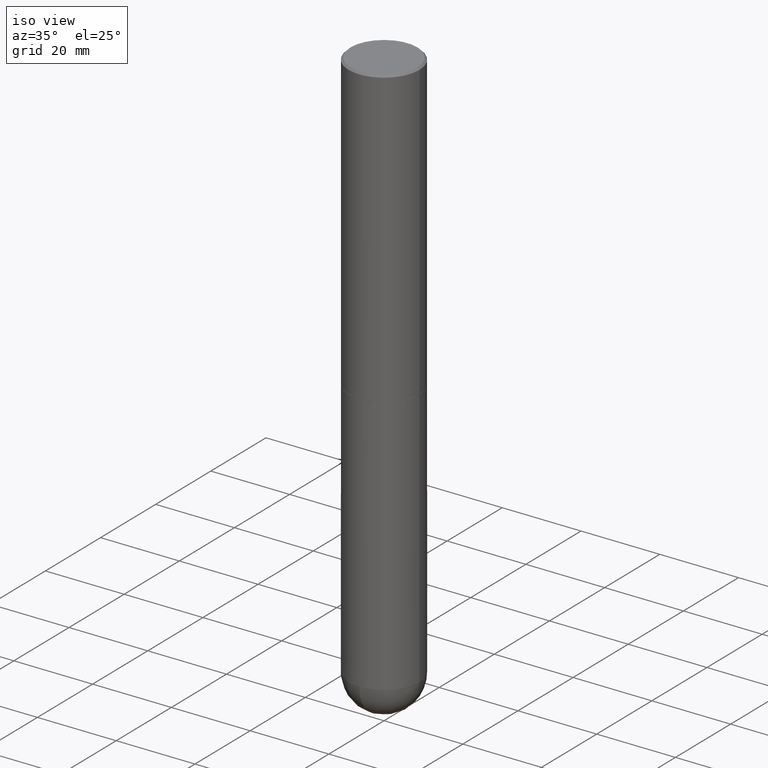
[diagram: clean part render]
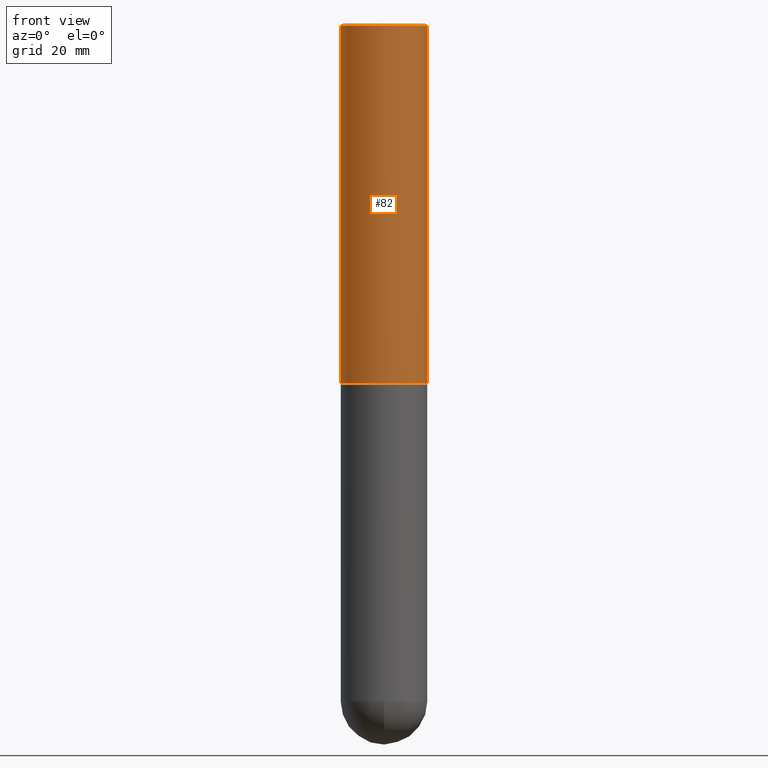
[diagram: tour spotlight — one face highlighted and labeled with its STEP entity id]
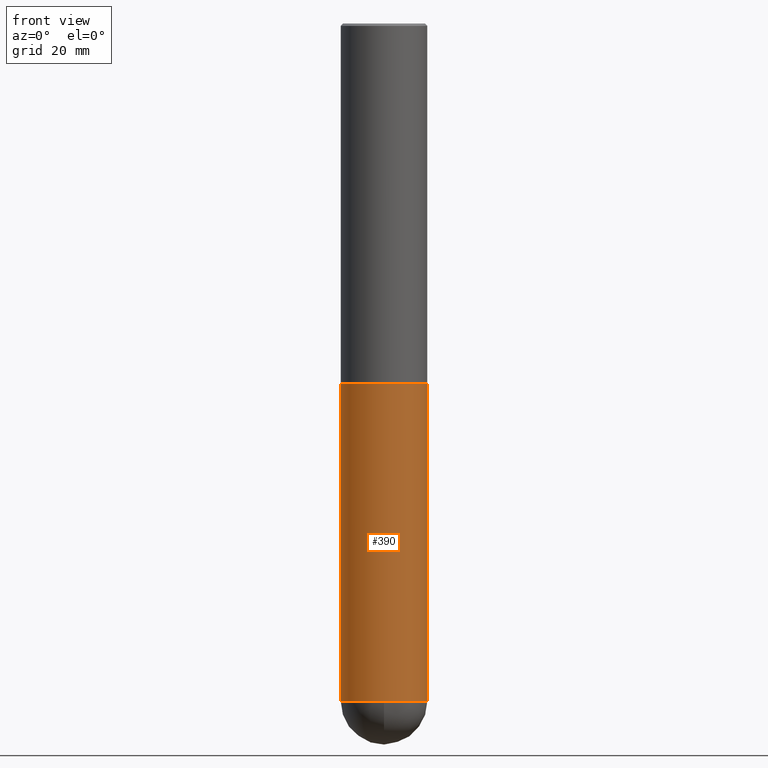
[diagram: tour spotlight — one face highlighted and labeled with its STEP entity id]
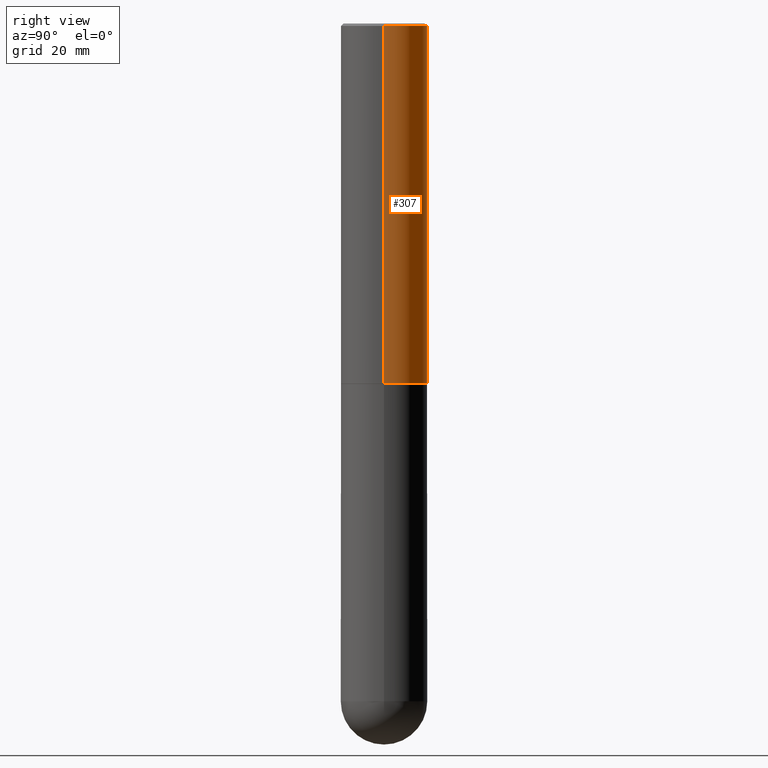
[diagram: tour spotlight — one face highlighted and labeled with its STEP entity id]
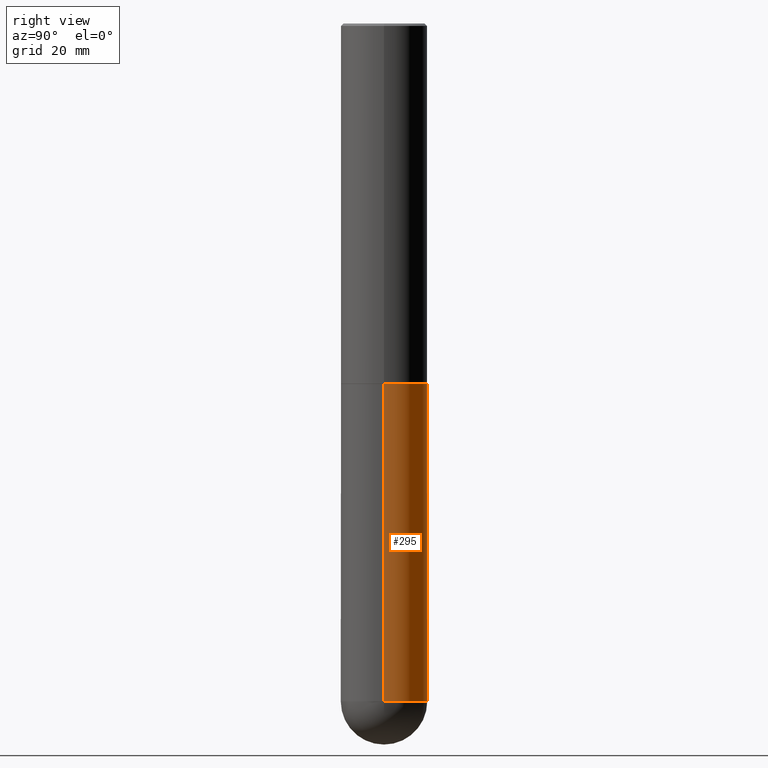
[diagram: tour spotlight — one face highlighted and labeled with its STEP entity id]
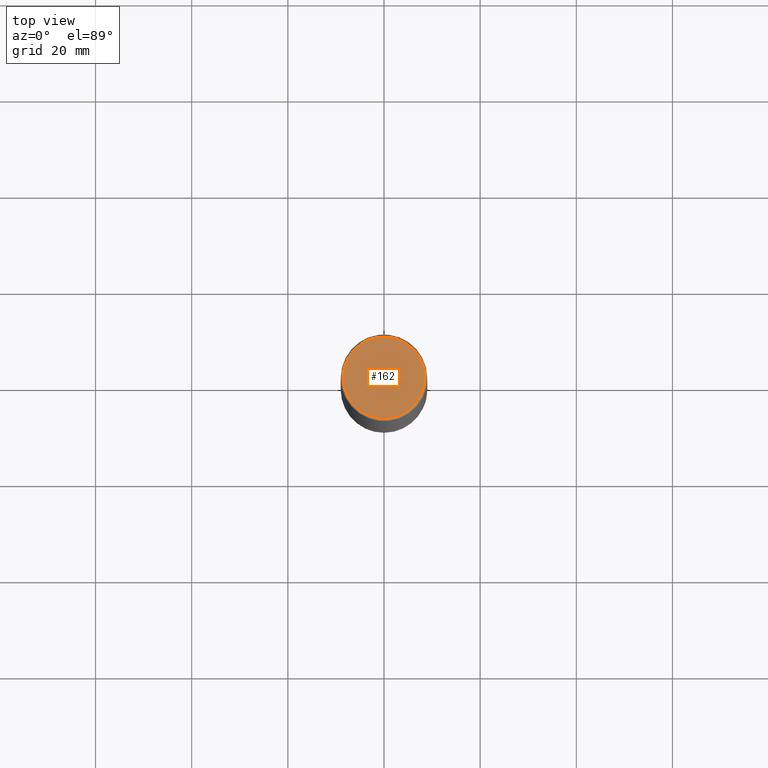
[diagram: tour spotlight — one face highlighted and labeled with its STEP entity id]
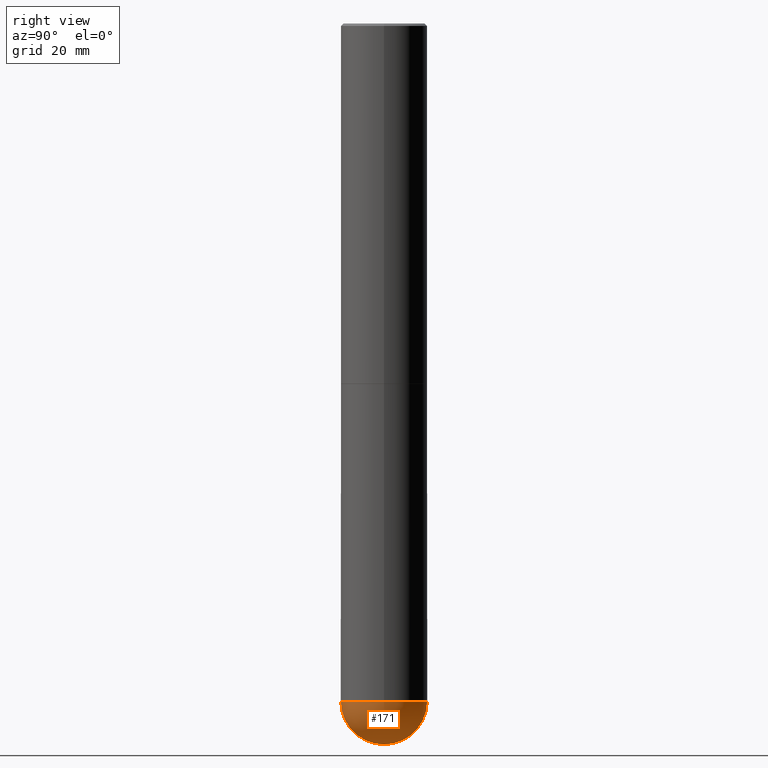
[diagram: tour spotlight — one face highlighted and labeled with its STEP entity id]
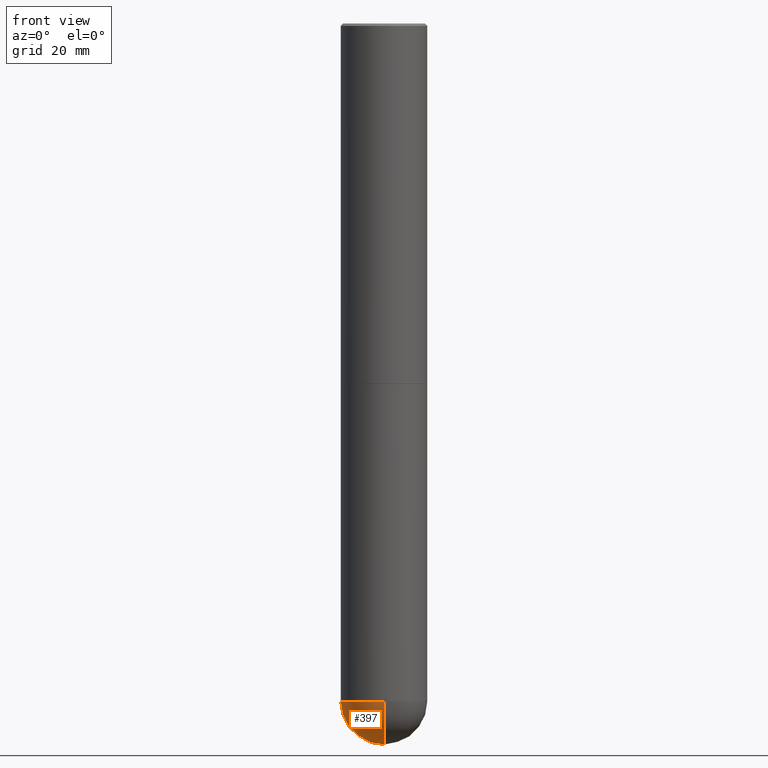
[diagram: tour spotlight — one face highlighted and labeled with its STEP entity id]
A machine part: a face-by-face anatomy tour. The part has 13 B-rep faces; the first image is the clean iso view, then the 7 largest visible faces are spotlighted one at a time (largest first), each with its STEP entity span.

Face 1 — front view, entity #82. In plain terms, the highlighted cylindrical surface (partial cylindrical patch) has radius 9.0005 mm, axis along (-0, 0, 1).
Definition (entity closure, byte-faithful):
#4 = LINE ( 'NONE', #139, #360 ) ;
#22 = ORIENTED_EDGE ( 'NONE', *, *, #83, .T. ) ;
#39 = DIRECTION ( 'NONE',  ( -2.445468806185136597E-29, 3.491481338843145583E-15, 1.000000000000000000 ) ) ;
#41 = CARTESIAN_POINT ( 'NONE',  ( -0.3543499999999999983, 2.404583198061265396E-15, -0.02000000000000008021 ) ) ;
#42 = VERTEX_POINT ( 'NONE', #93 ) ;
#61 = VERTEX_POINT ( 'NONE', #320 ) ;
#62 = VERTEX_POINT ( 'NONE', #128 ) ;
#71 = LINE ( 'NONE', #351, #88 ) ;
#74 = CARTESIAN_POINT ( 'NONE',  ( 4.890937612370293302E-31, -6.982962677686318726E-17, -0.02000000000000008021 ) ) ;
#82 = ADVANCED_FACE ( 'NONE', ( #237 ), #270, .T. ) ;
#83 = EDGE_CURVE ( 'NONE', #62, #42, #4, .T. ) ;
#88 = VECTOR ( 'NONE', #298, 39.37007874015748143 ) ;
#91 = DIRECTION ( 'NONE',  ( -2.445468806185136597E-29, 3.491481338843145583E-15, 1.000000000000000000 ) ) ;
#93 = CARTESIAN_POINT ( 'NONE',  ( 0.3543499999999999983, -2.500847092287205690E-15, -0.02000000000000008021 ) ) ;
#106 = ORIENTED_EDGE ( 'NONE', *, *, #215, .T. ) ;
#112 = EDGE_CURVE ( 'NONE', #339, #42, #361, .T. ) ;
#128 = CARTESIAN_POINT ( 'NONE',  ( 0.3543500000000004424, -1.278021829270144662E-14, -2.951700000000000212 ) ) ;
#139 = CARTESIAN_POINT ( 'NONE',  ( 0.3543500000000002204, -2.474412824838130272E-15, 1.727873240503290870E-29 ) ) ;
#173 = CIRCLE ( 'NONE', #231, 0.3543500000000004424 ) ;
#215 = EDGE_CURVE ( 'NONE', #61, #62, #173, .T. ) ;
#221 = AXIS2_PLACEMENT_3D ( 'NONE', #74, #91, #278 ) ;
#225 = ORIENTED_EDGE ( 'NONE', *, *, #112, .F. ) ;
#231 = AXIS2_PLACEMENT_3D ( 'NONE', #294, #395, #356 ) ;
#234 = ORIENTED_EDGE ( 'NONE', *, *, #272, .F. ) ;
#237 = FACE_OUTER_BOUND ( 'NONE', #252, .T. ) ;
#252 = EDGE_LOOP ( 'NONE', ( #234, #106, #22, #225 ) ) ;
#267 = DIRECTION ( 'NONE',  ( 1.000000000000000000, -6.982962677686266711E-15, 4.876176775795935793E-29 ) ) ;
#270 = CYLINDRICAL_SURFACE ( 'NONE', #399, 0.3543500000000002204 ) ;
#272 = EDGE_CURVE ( 'NONE', #61, #339, #71, .T. ) ;
#278 = DIRECTION ( 'NONE',  ( 1.000000000000000000, -6.982962677686266711E-15, 0.000000000000000000 ) ) ;
#294 = CARTESIAN_POINT ( 'NONE',  ( 7.218290275216666916E-29, -1.030580546786331359E-14, -2.951700000000000212 ) ) ;
#298 = DIRECTION ( 'NONE',  ( -2.445468806185136877E-29, 3.491481338843145188E-15, 1.000000000000000000 ) ) ;
#320 = CARTESIAN_POINT ( 'NONE',  ( -0.3543500000000004424, -2.670009363154166740E-15, -2.951700000000000212 ) ) ;
#339 = VERTEX_POINT ( 'NONE', #41 ) ;
#351 = CARTESIAN_POINT ( 'NONE',  ( -0.3543500000000002204, 2.517808184165916574E-15, -1.743024649231827187E-29 ) ) ;
#355 = DIRECTION ( 'NONE',  ( -2.445468806185136877E-29, 3.491481338843145188E-15, 1.000000000000000000 ) ) ;
#356 = DIRECTION ( 'NONE',  ( 1.000000000000000000, -6.982962677686268288E-15, 0.000000000000000000 ) ) ;
#360 = VECTOR ( 'NONE', #355, 39.37007874015748143 ) ;
#361 = CIRCLE ( 'NONE', #221, 0.3543499999999999983 ) ;
#395 = DIRECTION ( 'NONE',  ( -2.445468806185136597E-29, 3.491481338843145583E-15, 1.000000000000000000 ) ) ;
#398 = CARTESIAN_POINT ( 'NONE',  ( 0.000000000000000000, 0.000000000000000000, 0.000000000000000000 ) ) ;
#399 = AXIS2_PLACEMENT_3D ( 'NONE', #398, #39, #267 ) ;

Face 2 — front view, entity #390. In plain terms, the highlighted cylindrical surface (partial cylindrical patch) has radius 9.0005 mm, axis along (-0, 0, 1).
Definition (entity closure, byte-faithful):
#8 = DIRECTION ( 'NONE',  ( -2.445468806185136597E-29, 3.491481338843145583E-15, 1.000000000000000000 ) ) ;
#14 = LINE ( 'NONE', #73, #309 ) ;
#20 = DIRECTION ( 'NONE',  ( -2.445468806185136597E-29, 3.491481338843145583E-15, 1.000000000000000000 ) ) ;
#35 = CIRCLE ( 'NONE', #75, 0.3543499999999999428 ) ;
#40 = DIRECTION ( 'NONE',  ( -2.445468806185136597E-29, 3.491481338843145583E-15, 1.000000000000000000 ) ) ;
#70 = EDGE_CURVE ( 'NONE', #280, #219, #35, .T. ) ;
#72 = CARTESIAN_POINT ( 'NONE',  ( -0.3543499999999999428, -1.232770860749472642E-14, -5.551149999999999807 ) ) ;
#73 = CARTESIAN_POINT ( 'NONE',  ( 0.3543499999999999983, -2.474412824838128694E-15, 1.727873240503289749E-29 ) ) ;
#75 = AXIS2_PLACEMENT_3D ( 'NONE', #302, #20, #392 ) ;
#94 = DIRECTION ( 'NONE',  ( -2.445468806185136877E-29, 3.491481338843145188E-15, 1.000000000000000000 ) ) ;
#111 = CARTESIAN_POINT ( 'NONE',  ( -2.517808184165781285E-15, -0.3543500000000196493, -5.551149999999998919 ) ) ;
#120 = AXIS2_PLACEMENT_3D ( 'NONE', #261, #387, #144 ) ;
#130 = VERTEX_POINT ( 'NONE', #217 ) ;
#132 = DIRECTION ( 'NONE',  ( -2.445468806185136877E-29, 3.491481338843145188E-15, 1.000000000000000000 ) ) ;
#133 = VECTOR ( 'NONE', #94, 39.37007874015748143 ) ;
#141 = CIRCLE ( 'NONE', #304, 0.3543499999999999983 ) ;
#144 = DIRECTION ( 'NONE',  ( 1.000000000000000000, -6.982962677686261189E-15, 0.000000000000000000 ) ) ;
#155 = DIRECTION ( 'NONE',  ( 1.000000000000000000, -6.982962677686266711E-15, 4.876176775795935793E-29 ) ) ;
#159 = CARTESIAN_POINT ( 'NONE',  ( -0.3543499999999999983, -1.232770860749472484E-14, -2.952700000000000102 ) ) ;
#174 = ORIENTED_EDGE ( 'NONE', *, *, #211, .T. ) ;
#184 = CARTESIAN_POINT ( 'NONE',  ( 7.220735744022852519E-29, -1.030929694920215502E-14, -2.952700000000000102 ) ) ;
#195 = ORIENTED_EDGE ( 'NONE', *, *, #70, .T. ) ;
#201 = ORIENTED_EDGE ( 'NONE', *, *, #291, .F. ) ;
#211 = EDGE_CURVE ( 'NONE', #219, #130, #303, .T. ) ;
#217 = CARTESIAN_POINT ( 'NONE',  ( 0.3543499999999999428, -1.731992961649876932E-14, -5.551149999999999807 ) ) ;
#218 = EDGE_LOOP ( 'NONE', ( #396, #195, #174, #350, #201 ) ) ;
#219 = VERTEX_POINT ( 'NONE', #111 ) ;
#232 = AXIS2_PLACEMENT_3D ( 'NONE', #366, #40, #155 ) ;
#261 = CARTESIAN_POINT ( 'NONE',  ( 1.357516416345461774E-28, -1.938173663411912545E-14, -5.551149999999999807 ) ) ;
#273 = EDGE_CURVE ( 'NONE', #130, #276, #14, .T. ) ;
#276 = VERTEX_POINT ( 'NONE', #391 ) ;
#280 = VERTEX_POINT ( 'NONE', #72 ) ;
#291 = EDGE_CURVE ( 'NONE', #384, #276, #141, .T. ) ;
#302 = CARTESIAN_POINT ( 'NONE',  ( 1.357516416345461774E-28, -1.938173663411912545E-14, -5.551149999999999807 ) ) ;
#303 = CIRCLE ( 'NONE', #120, 0.3543499999999999428 ) ;
#304 = AXIS2_PLACEMENT_3D ( 'NONE', #184, #8, #315 ) ;
#309 = VECTOR ( 'NONE', #132, 39.37007874015748143 ) ;
#315 = DIRECTION ( 'NONE',  ( 1.000000000000000000, -6.982962677686265922E-15, 0.000000000000000000 ) ) ;
#319 = CYLINDRICAL_SURFACE ( 'NONE', #232, 0.3543499999999999983 ) ;
#336 = EDGE_CURVE ( 'NONE', #280, #384, #343, .T. ) ;
#343 = LINE ( 'NONE', #368, #133 ) ;
#350 = ORIENTED_EDGE ( 'NONE', *, *, #273, .T. ) ;
#365 = FACE_OUTER_BOUND ( 'NONE', #218, .T. ) ;
#366 = CARTESIAN_POINT ( 'NONE',  ( 0.000000000000000000, 0.000000000000000000, 0.000000000000000000 ) ) ;
#368 = CARTESIAN_POINT ( 'NONE',  ( -0.3543499999999999983, 2.517808184165914997E-15, -1.743024649231826066E-29 ) ) ;
#384 = VERTEX_POINT ( 'NONE', #159 ) ;
#387 = DIRECTION ( 'NONE',  ( -2.445468806185136597E-29, 3.491481338843145583E-15, 1.000000000000000000 ) ) ;
#390 = ADVANCED_FACE ( 'NONE', ( #365 ), #319, .T. ) ;
#391 = CARTESIAN_POINT ( 'NONE',  ( 0.3543499999999999983, -1.278370977404028332E-14, -2.952700000000000102 ) ) ;
#392 = DIRECTION ( 'NONE',  ( 1.000000000000000000, -6.982962677686261189E-15, 0.000000000000000000 ) ) ;
#396 = ORIENTED_EDGE ( 'NONE', *, *, #336, .F. ) ;

Face 3 — right view, entity #307. In plain terms, the highlighted cylindrical surface (partial cylindrical patch) has radius 9.0005 mm, axis along (-0, 0, 1).
Definition (entity closure, byte-faithful):
#3 = DIRECTION ( 'NONE',  ( -2.445468806185136597E-29, 3.491481338843145583E-15, 1.000000000000000000 ) ) ;
#4 = LINE ( 'NONE', #139, #360 ) ;
#25 = AXIS2_PLACEMENT_3D ( 'NONE', #266, #3, #240 ) ;
#41 = CARTESIAN_POINT ( 'NONE',  ( -0.3543499999999999983, 2.404583198061265396E-15, -0.02000000000000008021 ) ) ;
#42 = VERTEX_POINT ( 'NONE', #93 ) ;
#49 = ORIENTED_EDGE ( 'NONE', *, *, #83, .F. ) ;
#61 = VERTEX_POINT ( 'NONE', #320 ) ;
#62 = VERTEX_POINT ( 'NONE', #128 ) ;
#65 = ORIENTED_EDGE ( 'NONE', *, *, #272, .T. ) ;
#68 = CIRCLE ( 'NONE', #25, 0.3543499999999999983 ) ;
#69 = EDGE_CURVE ( 'NONE', #62, #61, #150, .T. ) ;
#71 = LINE ( 'NONE', #351, #88 ) ;
#78 = ORIENTED_EDGE ( 'NONE', *, *, #69, .T. ) ;
#83 = EDGE_CURVE ( 'NONE', #62, #42, #4, .T. ) ;
#88 = VECTOR ( 'NONE', #298, 39.37007874015748143 ) ;
#93 = CARTESIAN_POINT ( 'NONE',  ( 0.3543499999999999983, -2.500847092287205690E-15, -0.02000000000000008021 ) ) ;
#128 = CARTESIAN_POINT ( 'NONE',  ( 0.3543500000000004424, -1.278021829270144662E-14, -2.951700000000000212 ) ) ;
#135 = DIRECTION ( 'NONE',  ( -2.445468806185136597E-29, 3.491481338843145583E-15, 1.000000000000000000 ) ) ;
#139 = CARTESIAN_POINT ( 'NONE',  ( 0.3543500000000002204, -2.474412824838130272E-15, 1.727873240503290870E-29 ) ) ;
#150 = CIRCLE ( 'NONE', #213, 0.3543500000000004424 ) ;
#164 = DIRECTION ( 'NONE',  ( -2.445468806185136597E-29, 3.491481338843145583E-15, 1.000000000000000000 ) ) ;
#187 = EDGE_CURVE ( 'NONE', #42, #339, #68, .T. ) ;
#189 = AXIS2_PLACEMENT_3D ( 'NONE', #226, #135, #376 ) ;
#213 = AXIS2_PLACEMENT_3D ( 'NONE', #411, #164, #243 ) ;
#226 = CARTESIAN_POINT ( 'NONE',  ( 0.000000000000000000, 0.000000000000000000, 0.000000000000000000 ) ) ;
#238 = FACE_OUTER_BOUND ( 'NONE', #257, .T. ) ;
#240 = DIRECTION ( 'NONE',  ( 1.000000000000000000, -6.982962677686266711E-15, 0.000000000000000000 ) ) ;
#243 = DIRECTION ( 'NONE',  ( 1.000000000000000000, -6.982962677686268288E-15, 0.000000000000000000 ) ) ;
#245 = ORIENTED_EDGE ( 'NONE', *, *, #187, .F. ) ;
#257 = EDGE_LOOP ( 'NONE', ( #78, #65, #245, #49 ) ) ;
#266 = CARTESIAN_POINT ( 'NONE',  ( 4.890937612370293302E-31, -6.982962677686318726E-17, -0.02000000000000008021 ) ) ;
#272 = EDGE_CURVE ( 'NONE', #61, #339, #71, .T. ) ;
#298 = DIRECTION ( 'NONE',  ( -2.445468806185136877E-29, 3.491481338843145188E-15, 1.000000000000000000 ) ) ;
#307 = ADVANCED_FACE ( 'NONE', ( #238 ), #310, .T. ) ;
#310 = CYLINDRICAL_SURFACE ( 'NONE', #189, 0.3543500000000002204 ) ;
#320 = CARTESIAN_POINT ( 'NONE',  ( -0.3543500000000004424, -2.670009363154166740E-15, -2.951700000000000212 ) ) ;
#339 = VERTEX_POINT ( 'NONE', #41 ) ;
#351 = CARTESIAN_POINT ( 'NONE',  ( -0.3543500000000002204, 2.517808184165916574E-15, -1.743024649231827187E-29 ) ) ;
#355 = DIRECTION ( 'NONE',  ( -2.445468806185136877E-29, 3.491481338843145188E-15, 1.000000000000000000 ) ) ;
#360 = VECTOR ( 'NONE', #355, 39.37007874015748143 ) ;
#376 = DIRECTION ( 'NONE',  ( 1.000000000000000000, -6.982962677686266711E-15, 4.876176775795935793E-29 ) ) ;
#411 = CARTESIAN_POINT ( 'NONE',  ( 7.218290275216666916E-29, -1.030580546786331359E-14, -2.951700000000000212 ) ) ;

Face 4 — right view, entity #295. In plain terms, the highlighted cylindrical surface (partial cylindrical patch) has radius 9.0005 mm, axis along (-0, 0, 1).
Definition (entity closure, byte-faithful):
#9 = DIRECTION ( 'NONE',  ( -2.445468806185136597E-29, 3.491481338843145583E-15, 1.000000000000000000 ) ) ;
#12 = AXIS2_PLACEMENT_3D ( 'NONE', #386, #255, #37 ) ;
#14 = LINE ( 'NONE', #73, #309 ) ;
#18 = ORIENTED_EDGE ( 'NONE', *, *, #241, .T. ) ;
#24 = EDGE_CURVE ( 'NONE', #276, #384, #407, .T. ) ;
#31 = EDGE_LOOP ( 'NONE', ( #18, #308, #124, #380, #412 ) ) ;
#36 = CIRCLE ( 'NONE', #271, 0.3543499999999999428 ) ;
#37 = DIRECTION ( 'NONE',  ( 1.000000000000000000, -6.982962677686266711E-15, 4.876176775795935793E-29 ) ) ;
#45 = CARTESIAN_POINT ( 'NONE',  ( 1.357516416345461774E-28, -1.938173663411912545E-14, -5.551149999999999807 ) ) ;
#55 = VERTEX_POINT ( 'NONE', #374 ) ;
#72 = CARTESIAN_POINT ( 'NONE',  ( -0.3543499999999999428, -1.232770860749472642E-14, -5.551149999999999807 ) ) ;
#73 = CARTESIAN_POINT ( 'NONE',  ( 0.3543499999999999983, -2.474412824838128694E-15, 1.727873240503289749E-29 ) ) ;
#76 = CARTESIAN_POINT ( 'NONE',  ( 1.357516416345461774E-28, -1.938173663411912545E-14, -5.551149999999999807 ) ) ;
#94 = DIRECTION ( 'NONE',  ( -2.445468806185136877E-29, 3.491481338843145188E-15, 1.000000000000000000 ) ) ;
#96 = AXIS2_PLACEMENT_3D ( 'NONE', #160, #102, #230 ) ;
#102 = DIRECTION ( 'NONE',  ( -2.445468806185136597E-29, 3.491481338843145583E-15, 1.000000000000000000 ) ) ;
#103 = DIRECTION ( 'NONE',  ( -2.445468806185136597E-29, 3.491481338843145583E-15, 1.000000000000000000 ) ) ;
#107 = DIRECTION ( 'NONE',  ( 1.000000000000000000, -6.982962677686261189E-15, 0.000000000000000000 ) ) ;
#124 = ORIENTED_EDGE ( 'NONE', *, *, #24, .F. ) ;
#130 = VERTEX_POINT ( 'NONE', #217 ) ;
#132 = DIRECTION ( 'NONE',  ( -2.445468806185136877E-29, 3.491481338843145188E-15, 1.000000000000000000 ) ) ;
#133 = VECTOR ( 'NONE', #94, 39.37007874015748143 ) ;
#159 = CARTESIAN_POINT ( 'NONE',  ( -0.3543499999999999983, -1.232770860749472484E-14, -2.952700000000000102 ) ) ;
#160 = CARTESIAN_POINT ( 'NONE',  ( 7.220735744022852519E-29, -1.030929694920215502E-14, -2.952700000000000102 ) ) ;
#217 = CARTESIAN_POINT ( 'NONE',  ( 0.3543499999999999428, -1.731992961649876932E-14, -5.551149999999999807 ) ) ;
#230 = DIRECTION ( 'NONE',  ( 1.000000000000000000, -6.982962677686265922E-15, 0.000000000000000000 ) ) ;
#233 = DIRECTION ( 'NONE',  ( 1.000000000000000000, -6.982962677686261189E-15, 0.000000000000000000 ) ) ;
#241 = EDGE_CURVE ( 'NONE', #55, #280, #36, .T. ) ;
#255 = DIRECTION ( 'NONE',  ( -2.445468806185136597E-29, 3.491481338843145583E-15, 1.000000000000000000 ) ) ;
#263 = FACE_OUTER_BOUND ( 'NONE', #31, .T. ) ;
#265 = CYLINDRICAL_SURFACE ( 'NONE', #12, 0.3543499999999999983 ) ;
#268 = EDGE_CURVE ( 'NONE', #130, #55, #408, .T. ) ;
#271 = AXIS2_PLACEMENT_3D ( 'NONE', #76, #9, #107 ) ;
#273 = EDGE_CURVE ( 'NONE', #130, #276, #14, .T. ) ;
#276 = VERTEX_POINT ( 'NONE', #391 ) ;
#280 = VERTEX_POINT ( 'NONE', #72 ) ;
#295 = ADVANCED_FACE ( 'NONE', ( #263 ), #265, .T. ) ;
#308 = ORIENTED_EDGE ( 'NONE', *, *, #336, .T. ) ;
#309 = VECTOR ( 'NONE', #132, 39.37007874015748143 ) ;
#336 = EDGE_CURVE ( 'NONE', #280, #384, #343, .T. ) ;
#343 = LINE ( 'NONE', #368, #133 ) ;
#368 = CARTESIAN_POINT ( 'NONE',  ( -0.3543499999999999983, 2.517808184165914997E-15, -1.743024649231826066E-29 ) ) ;
#374 = CARTESIAN_POINT ( 'NONE',  ( 2.474412824838263195E-15, 0.3543499999999804584, -5.551150000000000695 ) ) ;
#380 = ORIENTED_EDGE ( 'NONE', *, *, #273, .F. ) ;
#384 = VERTEX_POINT ( 'NONE', #159 ) ;
#386 = CARTESIAN_POINT ( 'NONE',  ( 0.000000000000000000, 0.000000000000000000, 0.000000000000000000 ) ) ;
#391 = CARTESIAN_POINT ( 'NONE',  ( 0.3543499999999999983, -1.278370977404028332E-14, -2.952700000000000102 ) ) ;
#401 = AXIS2_PLACEMENT_3D ( 'NONE', #45, #103, #233 ) ;
#407 = CIRCLE ( 'NONE', #96, 0.3543499999999999983 ) ;
#408 = CIRCLE ( 'NONE', #401, 0.3543499999999999428 ) ;
#412 = ORIENTED_EDGE ( 'NONE', *, *, #268, .T. ) ;

Face 5 — top view, entity #162. In plain terms, the highlighted planar face has unit normal (0, -0, -1).
Definition (entity closure, byte-faithful):
#13 = CARTESIAN_POINT ( 'NONE',  ( -0.3343499999999999250, 2.369668384672834141E-15, 2.561107494058601869E-17 ) ) ;
#23 = EDGE_LOOP ( 'NONE', ( #239, #358 ) ) ;
#50 = EDGE_CURVE ( 'NONE', #292, #328, #52, .T. ) ;
#52 = CIRCLE ( 'NONE', #244, 0.3343499999999999250 ) ;
#123 = FACE_OUTER_BOUND ( 'NONE', #23, .T. ) ;
#154 = CIRCLE ( 'NONE', #206, 0.3343499999999999250 ) ;
#156 = DIRECTION ( 'NONE',  ( 1.000000000000000000, -6.982962677686267499E-15, 4.875777752381879149E-29 ) ) ;
#162 = ADVANCED_FACE ( 'NONE', ( #123 ), #341, .F. ) ;
#182 = CARTESIAN_POINT ( 'NONE',  ( 2.334753571284402492E-15, 0.3343499999999999250, -1.154571248171904305E-15 ) ) ;
#193 = DIRECTION ( 'NONE',  ( 1.000000000000000000, -6.982962677686267499E-15, 4.875777752381879149E-29 ) ) ;
#200 = CARTESIAN_POINT ( 'NONE',  ( 0.3343499999999999250, -2.397327298921058709E-15, 2.561107494061901218E-17 ) ) ;
#206 = AXIS2_PLACEMENT_3D ( 'NONE', #325, #381, #193 ) ;
#236 = EDGE_CURVE ( 'NONE', #328, #292, #154, .T. ) ;
#239 = ORIENTED_EDGE ( 'NONE', *, *, #50, .T. ) ;
#244 = AXIS2_PLACEMENT_3D ( 'NONE', #258, #284, #156 ) ;
#258 = CARTESIAN_POINT ( 'NONE',  ( -6.263108486011318528E-46, 8.942059022282683748E-32, 2.561107494060246767E-17 ) ) ;
#284 = DIRECTION ( 'NONE',  ( -2.445468806185136597E-29, 3.491481338843145583E-15, 1.000000000000000000 ) ) ;
#292 = VERTEX_POINT ( 'NONE', #13 ) ;
#311 = DIRECTION ( 'NONE',  ( 2.438088387897960049E-29, -3.491481338843145188E-15, -1.000000000000000000 ) ) ;
#325 = CARTESIAN_POINT ( 'NONE',  ( -6.263108486011318528E-46, 8.942059022282683748E-32, 2.561107494060246767E-17 ) ) ;
#327 = AXIS2_PLACEMENT_3D ( 'NONE', #182, #311, #373 ) ;
#328 = VERTEX_POINT ( 'NONE', #200 ) ;
#341 = PLANE ( 'NONE',  #327 ) ;
#358 = ORIENTED_EDGE ( 'NONE', *, *, #236, .T. ) ;
#373 = DIRECTION ( 'NONE',  ( -1.000000000000000000, 6.982962677686265922E-15, -4.876176775795935793E-29 ) ) ;
#381 = DIRECTION ( 'NONE',  ( -2.445468806185136597E-29, 3.491481338843145583E-15, 1.000000000000000000 ) ) ;

Face 6 — right view, entity #171. In plain terms, the highlighted spherical surface has radius 9.0005 mm.
Definition (entity closure, byte-faithful):
#32 = DIRECTION ( 'NONE',  ( -7.105427357601001070E-15, -1.000000000000000000, 0.000000000000000000 ) ) ;
#45 = CARTESIAN_POINT ( 'NONE',  ( 1.357516416345461774E-28, -1.938173663411912545E-14, -5.551149999999999807 ) ) ;
#46 = AXIS2_PLACEMENT_3D ( 'NONE', #127, #178, #32 ) ;
#55 = VERTEX_POINT ( 'NONE', #374 ) ;
#81 = EDGE_CURVE ( 'NONE', #324, #55, #114, .T. ) ;
#87 = AXIS2_PLACEMENT_3D ( 'NONE', #229, #354, #349 ) ;
#101 = SPHERICAL_SURFACE ( 'NONE', #87, 0.3543500000000002204 ) ;
#103 = DIRECTION ( 'NONE',  ( -2.445468806185136597E-29, 3.491481338843145583E-15, 1.000000000000000000 ) ) ;
#108 = DIRECTION ( 'NONE',  ( 6.982962677686265133E-15, 1.000000000000000000, 0.000000000000000000 ) ) ;
#111 = CARTESIAN_POINT ( 'NONE',  ( -2.517808184165781285E-15, -0.3543500000000196493, -5.551149999999998919 ) ) ;
#114 = CIRCLE ( 'NONE', #254, 0.3543500000000002204 ) ;
#120 = AXIS2_PLACEMENT_3D ( 'NONE', #261, #387, #144 ) ;
#127 = CARTESIAN_POINT ( 'NONE',  ( 1.324404438554073486E-28, -1.985591900225917417E-14, -5.551149999999999807 ) ) ;
#130 = VERTEX_POINT ( 'NONE', #217 ) ;
#144 = DIRECTION ( 'NONE',  ( 1.000000000000000000, -6.982962677686261189E-15, 0.000000000000000000 ) ) ;
#146 = EDGE_CURVE ( 'NONE', #324, #219, #246, .T. ) ;
#165 = ORIENTED_EDGE ( 'NONE', *, *, #81, .T. ) ;
#168 = CARTESIAN_POINT ( 'NONE',  ( 1.324404438554073486E-28, -1.985591900225917417E-14, -5.551149999999999807 ) ) ;
#171 = ADVANCED_FACE ( 'NONE', ( #377 ), #101, .T. ) ;
#178 = DIRECTION ( 'NONE',  ( -1.000000000000000000, 7.105427357601001070E-15, -4.926315508542082329E-29 ) ) ;
#204 = ORIENTED_EDGE ( 'NONE', *, *, #268, .F. ) ;
#211 = EDGE_CURVE ( 'NONE', #219, #130, #303, .T. ) ;
#217 = CARTESIAN_POINT ( 'NONE',  ( 0.3543499999999999428, -1.731992961649876932E-14, -5.551149999999999807 ) ) ;
#219 = VERTEX_POINT ( 'NONE', #111 ) ;
#229 = CARTESIAN_POINT ( 'NONE',  ( 1.324404438554073486E-28, -1.985591900225917417E-14, -5.551149999999999807 ) ) ;
#233 = DIRECTION ( 'NONE',  ( 1.000000000000000000, -6.982962677686261189E-15, 0.000000000000000000 ) ) ;
#246 = CIRCLE ( 'NONE', #46, 0.3543500000000002204 ) ;
#254 = AXIS2_PLACEMENT_3D ( 'NONE', #168, #388, #108 ) ;
#261 = CARTESIAN_POINT ( 'NONE',  ( 1.357516416345461774E-28, -1.938173663411912545E-14, -5.551149999999999807 ) ) ;
#268 = EDGE_CURVE ( 'NONE', #130, #55, #408, .T. ) ;
#303 = CIRCLE ( 'NONE', #120, 0.3543499999999999428 ) ;
#312 = ORIENTED_EDGE ( 'NONE', *, *, #146, .F. ) ;
#324 = VERTEX_POINT ( 'NONE', #326 ) ;
#326 = CARTESIAN_POINT ( 'NONE',  ( 1.412574766574097249E-28, -2.107142773501435227E-14, -5.905499999999999972 ) ) ;
#332 = ORIENTED_EDGE ( 'NONE', *, *, #211, .F. ) ;
#349 = DIRECTION ( 'NONE',  ( 6.982962677686265922E-15, 1.000000000000000000, -3.083784951222533328E-15 ) ) ;
#354 = DIRECTION ( 'NONE',  ( -1.000000000000000000, 6.982962677686265922E-15, -4.883557194083112340E-29 ) ) ;
#374 = CARTESIAN_POINT ( 'NONE',  ( 2.474412824838263195E-15, 0.3543499999999804584, -5.551150000000000695 ) ) ;
#377 = FACE_OUTER_BOUND ( 'NONE', #394, .T. ) ;
#387 = DIRECTION ( 'NONE',  ( -2.445468806185136597E-29, 3.491481338843145583E-15, 1.000000000000000000 ) ) ;
#388 = DIRECTION ( 'NONE',  ( 1.000000000000000000, -6.982962677686265922E-15, 4.883557194083112340E-29 ) ) ;
#394 = EDGE_LOOP ( 'NONE', ( #312, #165, #204, #332 ) ) ;
#401 = AXIS2_PLACEMENT_3D ( 'NONE', #45, #103, #233 ) ;
#408 = CIRCLE ( 'NONE', #401, 0.3543499999999999428 ) ;

Face 7 — front view, entity #397. In plain terms, the highlighted spherical surface has radius 9.0005 mm.
Definition (entity closure, byte-faithful):
#5 = SPHERICAL_SURFACE ( 'NONE', #59, 0.3543500000000002204 ) ;
#7 = EDGE_LOOP ( 'NONE', ( #183, #77, #286, #282 ) ) ;
#9 = DIRECTION ( 'NONE',  ( -2.445468806185136597E-29, 3.491481338843145583E-15, 1.000000000000000000 ) ) ;
#20 = DIRECTION ( 'NONE',  ( -2.445468806185136597E-29, 3.491481338843145583E-15, 1.000000000000000000 ) ) ;
#32 = DIRECTION ( 'NONE',  ( -7.105427357601001070E-15, -1.000000000000000000, 0.000000000000000000 ) ) ;
#35 = CIRCLE ( 'NONE', #75, 0.3543499999999999428 ) ;
#36 = CIRCLE ( 'NONE', #271, 0.3543499999999999428 ) ;
#46 = AXIS2_PLACEMENT_3D ( 'NONE', #127, #178, #32 ) ;
#55 = VERTEX_POINT ( 'NONE', #374 ) ;
#59 = AXIS2_PLACEMENT_3D ( 'NONE', #279, #344, #60 ) ;
#60 = DIRECTION ( 'NONE',  ( 6.982962677686265922E-15, 1.000000000000000000, -3.083784951222533328E-15 ) ) ;
#70 = EDGE_CURVE ( 'NONE', #280, #219, #35, .T. ) ;
#72 = CARTESIAN_POINT ( 'NONE',  ( -0.3543499999999999428, -1.232770860749472642E-14, -5.551149999999999807 ) ) ;
#75 = AXIS2_PLACEMENT_3D ( 'NONE', #302, #20, #392 ) ;
#76 = CARTESIAN_POINT ( 'NONE',  ( 1.357516416345461774E-28, -1.938173663411912545E-14, -5.551149999999999807 ) ) ;
#77 = ORIENTED_EDGE ( 'NONE', *, *, #146, .T. ) ;
#81 = EDGE_CURVE ( 'NONE', #324, #55, #114, .T. ) ;
#92 = FACE_OUTER_BOUND ( 'NONE', #7, .T. ) ;
#107 = DIRECTION ( 'NONE',  ( 1.000000000000000000, -6.982962677686261189E-15, 0.000000000000000000 ) ) ;
#108 = DIRECTION ( 'NONE',  ( 6.982962677686265133E-15, 1.000000000000000000, 0.000000000000000000 ) ) ;
#111 = CARTESIAN_POINT ( 'NONE',  ( -2.517808184165781285E-15, -0.3543500000000196493, -5.551149999999998919 ) ) ;
#114 = CIRCLE ( 'NONE', #254, 0.3543500000000002204 ) ;
#127 = CARTESIAN_POINT ( 'NONE',  ( 1.324404438554073486E-28, -1.985591900225917417E-14, -5.551149999999999807 ) ) ;
#146 = EDGE_CURVE ( 'NONE', #324, #219, #246, .T. ) ;
#168 = CARTESIAN_POINT ( 'NONE',  ( 1.324404438554073486E-28, -1.985591900225917417E-14, -5.551149999999999807 ) ) ;
#178 = DIRECTION ( 'NONE',  ( -1.000000000000000000, 7.105427357601001070E-15, -4.926315508542082329E-29 ) ) ;
#183 = ORIENTED_EDGE ( 'NONE', *, *, #81, .F. ) ;
#219 = VERTEX_POINT ( 'NONE', #111 ) ;
#241 = EDGE_CURVE ( 'NONE', #55, #280, #36, .T. ) ;
#246 = CIRCLE ( 'NONE', #46, 0.3543500000000002204 ) ;
#254 = AXIS2_PLACEMENT_3D ( 'NONE', #168, #388, #108 ) ;
#271 = AXIS2_PLACEMENT_3D ( 'NONE', #76, #9, #107 ) ;
#279 = CARTESIAN_POINT ( 'NONE',  ( 1.324404438554073486E-28, -1.985591900225917417E-14, -5.551149999999999807 ) ) ;
#280 = VERTEX_POINT ( 'NONE', #72 ) ;
#282 = ORIENTED_EDGE ( 'NONE', *, *, #241, .F. ) ;
#286 = ORIENTED_EDGE ( 'NONE', *, *, #70, .F. ) ;
#302 = CARTESIAN_POINT ( 'NONE',  ( 1.357516416345461774E-28, -1.938173663411912545E-14, -5.551149999999999807 ) ) ;
#324 = VERTEX_POINT ( 'NONE', #326 ) ;
#326 = CARTESIAN_POINT ( 'NONE',  ( 1.412574766574097249E-28, -2.107142773501435227E-14, -5.905499999999999972 ) ) ;
#344 = DIRECTION ( 'NONE',  ( -1.000000000000000000, 6.982962677686265922E-15, -4.883557194083112340E-29 ) ) ;
#374 = CARTESIAN_POINT ( 'NONE',  ( 2.474412824838263195E-15, 0.3543499999999804584, -5.551150000000000695 ) ) ;
#388 = DIRECTION ( 'NONE',  ( 1.000000000000000000, -6.982962677686265922E-15, 4.883557194083112340E-29 ) ) ;
#392 = DIRECTION ( 'NONE',  ( 1.000000000000000000, -6.982962677686261189E-15, 0.000000000000000000 ) ) ;
#397 = ADVANCED_FACE ( 'NONE', ( #92 ), #5, .T. ) ;